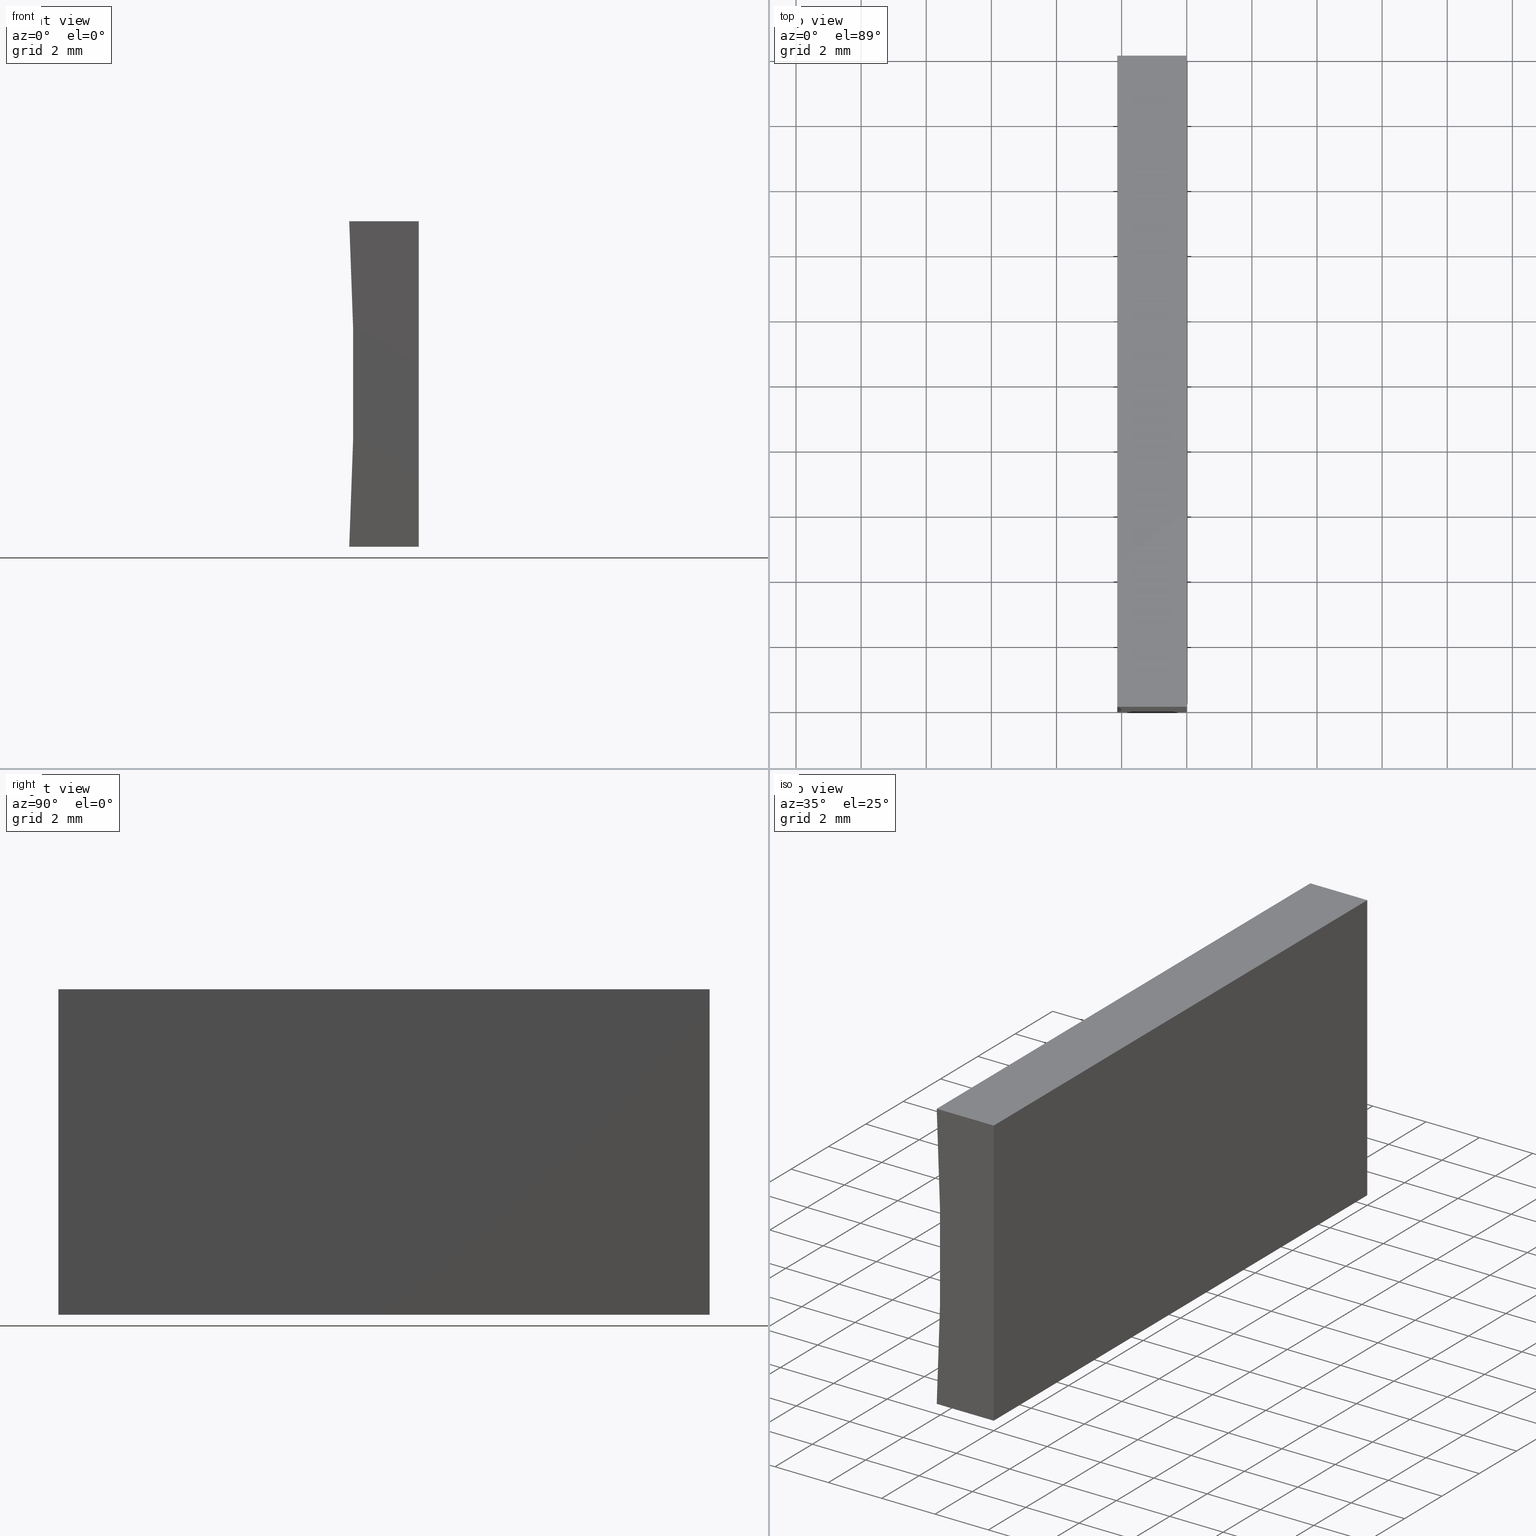
[diagram: canonical four-view strip — front | top / right | iso, engineering-drawing reading convention]
A machine part, canonical four-view strip (front | top / right | iso — engineering-drawing reading convention). The complete STEP part file that produces these views, byte-faithful:
ISO-10303-21;
HEADER;
FILE_DESCRIPTION (( 'STEP AP214' ),
    '1' );
FILE_NAME ('155483.STEP',
    '2019-07-04T01:50:56',
    ( 'user' ),
    ( '΢���й�' ),
    'SwSTEP 2.0',
    'SolidWorks 2016',
    '' );
FILE_SCHEMA (( 'AUTOMOTIVE_DESIGN' ));
ENDSEC;

DATA;
#1 = FILL_AREA_STYLE ('',( #114 ) ) ;
#2 = DIRECTION ( 'NONE',  ( 0.0000000000000000000, 0.0000000000000000000, -1.000000000000000000 ) ) ;
#3 = DIRECTION ( 'NONE',  ( 1.000000000000000000, 0.0000000000000000000, -8.119784972569431900E-016 ) ) ;
#4 = DIRECTION ( 'NONE',  ( 6.123233995736766000E-017, 0.0000000000000000000, 1.000000000000000000 ) ) ;
#5 = EDGE_CURVE ( 'NONE', #48, #185, #176, .T. ) ;
#6 =( NAMED_UNIT ( * ) PLANE_ANGLE_UNIT ( ) SI_UNIT ( $, .RADIAN. ) );
#7 = SURFACE_STYLE_USAGE ( .BOTH. , #102 ) ;
#8 = PRODUCT ( '155483', '155483', '', ( #33 ) ) ;
#9 = EDGE_CURVE ( 'NONE', #77, #148, #94, .T. ) ;
#10 = PRESENTATION_STYLE_ASSIGNMENT (( #7 ) ) ;
#11 = CARTESIAN_POINT ( 'NONE',  ( 6.123233995736766300E-016, 20.00000000000000000, 10.00000000000000000 ) ) ;
#12 = VECTOR ( 'NONE', #103, 1000.000000000000000 ) ;
#13 = AXIS2_PLACEMENT_3D ( 'NONE', #190, #21, #71 ) ;
#14 = SURFACE_STYLE_FILL_AREA ( #1 ) ;
#15 = APPLICATION_PROTOCOL_DEFINITION ( 'draft international standard', 'automotive_design', 1998, #129 ) ;
#16 = LINE ( 'NONE', #195, #12 ) ;
#17 = APPLICATION_CONTEXT ( 'automotive_design' ) ;
#18 = EDGE_CURVE ( 'NONE', #28, #42, #16, .T. ) ;
#19 = DIRECTION ( 'NONE',  ( 0.0000000000000000000, 0.0000000000000000000, 1.000000000000000000 ) ) ;
#20 = DIRECTION ( 'NONE',  ( -0.0000000000000000000, -1.000000000000000000, -0.0000000000000000000 ) ) ;
#21 = DIRECTION ( 'NONE',  ( 0.0000000000000000000, 1.000000000000000000, 0.0000000000000000000 ) ) ;
#22 = CLOSED_SHELL ( 'NONE', ( #182, #201, #64, #125, #139, #46 ) ) ;
#23 = DIRECTION ( 'NONE',  ( -6.123233995736766000E-017, -0.0000000000000000000, -1.000000000000000000 ) ) ;
#24 = ORIENTED_EDGE ( 'NONE', *, *, #9, .F. ) ;
#25 = AXIS2_PLACEMENT_3D ( 'NONE', #130, #20, #19 ) ;
#26 = FACE_OUTER_BOUND ( 'NONE', #165, .T. ) ;
#27 = DIRECTION ( 'NONE',  ( -1.000000000000000000, 0.0000000000000000000, 8.119784972569430900E-016 ) ) ;
#28 = VERTEX_POINT ( 'NONE', #149 ) ;
#29 = EDGE_CURVE ( 'NONE', #28, #48, #134, .T. ) ;
#30 = CARTESIAN_POINT ( 'NONE',  ( -93.70000000000000300, 0.0000000000000000000, 5.000000000000010700 ) ) ;
#31 = VECTOR ( 'NONE', #74, 1000.000000000000000 ) ;
#32 = EDGE_LOOP ( 'NONE', ( #104, #90, #199, #24 ) ) ;
#33 = PRODUCT_CONTEXT ( 'NONE', #17, 'mechanical' ) ;
#34 = APPLICATION_PROTOCOL_DEFINITION ( 'draft international standard', 'automotive_design', 1998, #17 ) ;
#35 = UNCERTAINTY_MEASURE_WITH_UNIT (LENGTH_MEASURE( 1.000000000000000100E-005 ), #83, 'distance_accuracy_value', 'NONE');
#36 = VECTOR ( 'NONE', #63, 1000.000000000000000 ) ;
#37 = PLANE ( 'NONE',  #39 ) ;
#38 = MANIFOLD_SOLID_BREP ( '͹̨-����1', #22 ) ;
#39 = AXIS2_PLACEMENT_3D ( 'NONE', #160, #117, #3 ) ;
#40 = CARTESIAN_POINT ( 'NONE',  ( 0.0000000000000000000, 20.00000000000000000, 0.0000000000000000000 ) ) ;
#41 = FILL_AREA_STYLE ('',( #133 ) ) ;
#42 = VERTEX_POINT ( 'NONE', #55 ) ;
#43 = CARTESIAN_POINT ( 'NONE',  ( 0.0000000000000000000, 20.00000000000000000, 0.0000000000000000000 ) ) ;
#44 = EDGE_CURVE ( 'NONE', #42, #155, #81, .T. ) ;
#45 = ORIENTED_EDGE ( 'NONE', *, *, #78, .F. ) ;
#46 = ADVANCED_FACE ( 'NONE', ( #51 ), #124, .F. ) ;
#47 =( GEOMETRIC_REPRESENTATION_CONTEXT ( 3 ) GLOBAL_UNCERTAINTY_ASSIGNED_CONTEXT ( ( #203 ) ) GLOBAL_UNIT_ASSIGNED_CONTEXT ( ( #69, #159, #50 ) ) REPRESENTATION_CONTEXT ( 'NONE', 'WORKASPACE' ) );
#48 = VERTEX_POINT ( 'NONE', #181 ) ;
#49 = DIRECTION ( 'NONE',  ( 0.0000000000000000000, 0.0000000000000000000, 1.000000000000000000 ) ) ;
#50 =( NAMED_UNIT ( * ) SI_UNIT ( $, .STERADIAN. ) SOLID_ANGLE_UNIT ( ) );
#51 = FACE_OUTER_BOUND ( 'NONE', #32, .T. ) ;
#52 = EDGE_CURVE ( 'NONE', #108, #148, #122, .T. ) ;
#53 = DIRECTION ( 'NONE',  ( -0.0000000000000000000, -1.000000000000000000, -0.0000000000000000000 ) ) ;
#54 = CARTESIAN_POINT ( 'NONE',  ( 6.123233995736766300E-016, 0.0000000000000000000, 10.00000000000000000 ) ) ;
#55 = CARTESIAN_POINT ( 'NONE',  ( 6.123233995736766300E-016, 0.0000000000000000000, 10.00000000000000000 ) ) ;
#56 = DIRECTION ( 'NONE',  ( -1.000000000000000000, 0.0000000000000000000, 8.119784972569430900E-016 ) ) ;
#57 = COLOUR_RGB ( '',1.000000000000000000, 1.000000000000000000, 1.000000000000000000 ) ;
#58 = STYLED_ITEM ( 'NONE', ( #86 ), #164 ) ;
#59 = FACE_OUTER_BOUND ( 'NONE', #141, .T. ) ;
#60 = ORIENTED_EDGE ( 'NONE', *, *, #29, .F. ) ;
#61 = ORIENTED_EDGE ( 'NONE', *, *, #9, .T. ) ;
#62 = EDGE_CURVE ( 'NONE', #155, #77, #96, .T. ) ;
#63 = DIRECTION ( 'NONE',  ( -6.123233995736766000E-017, -0.0000000000000000000, -1.000000000000000000 ) ) ;
#64 = ADVANCED_FACE ( 'NONE', ( #79 ), #194, .F. ) ;
#65 = LINE ( 'NONE', #169, #107 ) ;
#66 = PRODUCT_DEFINITION_SHAPE ( 'NONE', 'NONE',  #153 ) ;
#67 = ORIENTED_EDGE ( 'NONE', *, *, #184, .F. ) ;
#68 =( NAMED_UNIT ( * ) SI_UNIT ( $, .STERADIAN. ) SOLID_ANGLE_UNIT ( ) );
#69 =( LENGTH_UNIT ( ) NAMED_UNIT ( * ) SI_UNIT ( .MILLI., .METRE. ) );
#70 = DIRECTION ( 'NONE',  ( 1.000000000000000000, -0.0000000000000000000, 8.119784972569433800E-016 ) ) ;
#71 = DIRECTION ( 'NONE',  ( 0.0000000000000000000, -0.0000000000000000000, 1.000000000000000000 ) ) ;
#72 = EDGE_LOOP ( 'NONE', ( #136, #45, #128, #80 ) ) ;
#73 = AXIS2_PLACEMENT_3D ( 'NONE', #98, #115, #2 ) ;
#74 = DIRECTION ( 'NONE',  ( 1.000000000000000000, -0.0000000000000000000, 8.119784972569433800E-016 ) ) ;
#75 = DIRECTION ( 'NONE',  ( -1.000000000000000000, 0.0000000000000000000, -8.119784972569434800E-016 ) ) ;
#76 = DIRECTION ( 'NONE',  ( 0.0000000000000000000, 0.0000000000000000000, 1.000000000000000000 ) ) ;
#77 = VERTEX_POINT ( 'NONE', #137 ) ;
#78 = EDGE_CURVE ( 'NONE', #185, #77, #157, .T. ) ;
#79 = FACE_OUTER_BOUND ( 'NONE', #144, .T. ) ;
#80 = ORIENTED_EDGE ( 'NONE', *, *, #200, .T. ) ;
#81 = LINE ( 'NONE', #193, #36 ) ;
#82 = ORIENTED_EDGE ( 'NONE', *, *, #18, .F. ) ;
#83 =( LENGTH_UNIT ( ) NAMED_UNIT ( * ) SI_UNIT ( .MILLI., .METRE. ) );
#84 = AXIS2_PLACEMENT_3D ( 'NONE', #88, #174, #76 ) ;
#85 =( LENGTH_UNIT ( ) NAMED_UNIT ( * ) SI_UNIT ( .MILLI., .METRE. ) );
#86 = PRESENTATION_STYLE_ASSIGNMENT (( #186 ) ) ;
#87 = ORIENTED_EDGE ( 'NONE', *, *, #184, .T. ) ;
#88 = CARTESIAN_POINT ( 'NONE',  ( -93.70000000000000300, 0.0000000000000000000, 5.000000000000010700 ) ) ;
#89 = PRESENTATION_LAYER_ASSIGNMENT (  '', '', ( #58 ) ) ;
#90 = ORIENTED_EDGE ( 'NONE', *, *, #44, .F. ) ;
#91 = VECTOR ( 'NONE', #23, 1000.000000000000000 ) ;
#92 = STYLED_ITEM ( 'NONE', ( #10 ), #38 ) ;
#93 = EDGE_CURVE ( 'NONE', #148, #42, #189, .T. ) ;
#94 = CIRCLE ( 'NONE', #84, 91.70000000000001700 ) ;
#95 = SURFACE_SIDE_STYLE ('',( #14 ) ) ;
#96 = LINE ( 'NONE', #179, #197 ) ;
#97 = CARTESIAN_POINT ( 'NONE',  ( 0.0000000000000000000, 0.0000000000000000000, 0.0000000000000000000 ) ) ;
#98 = CARTESIAN_POINT ( 'NONE',  ( -93.70000000000000300, 20.00000000000000000, 5.000000000000010700 ) ) ;
#99 = MECHANICAL_DESIGN_GEOMETRIC_PRESENTATION_REPRESENTATION (  '', ( #58 ), #112 ) ;
#100 = SHAPE_DEFINITION_REPRESENTATION ( #66, #164 ) ;
#101 = CARTESIAN_POINT ( 'NONE',  ( -2.136415535432423200, 20.00000000000000000, -7.806255641895631900E-015 ) ) ;
#102 = SURFACE_SIDE_STYLE ('',( #168 ) ) ;
#103 = DIRECTION ( 'NONE',  ( -0.0000000000000000000, -1.000000000000000000, -0.0000000000000000000 ) ) ;
#104 = ORIENTED_EDGE ( 'NONE', *, *, #62, .F. ) ;
#105 = PRESENTATION_LAYER_ASSIGNMENT (  '', '', ( #92 ) ) ;
#106 = DIRECTION ( 'NONE',  ( 0.0000000000000000000, 1.000000000000000000, 0.0000000000000000000 ) ) ;
#107 = VECTOR ( 'NONE', #70, 1000.000000000000000 ) ;
#108 = VERTEX_POINT ( 'NONE', #147 ) ;
#109 = PRODUCT_DEFINITION_CONTEXT ( 'detailed design', #129, 'design' ) ;
#110 = VECTOR ( 'NONE', #163, 1000.000000000000000 ) ;
#111 = ORIENTED_EDGE ( 'NONE', *, *, #5, .T. ) ;
#112 =( GEOMETRIC_REPRESENTATION_CONTEXT ( 3 ) GLOBAL_UNCERTAINTY_ASSIGNED_CONTEXT ( ( #35 ) ) GLOBAL_UNIT_ASSIGNED_CONTEXT ( ( #83, #167, #68 ) ) REPRESENTATION_CONTEXT ( 'NONE', 'WORKASPACE' ) );
#113 = ORIENTED_EDGE ( 'NONE', *, *, #187, .T. ) ;
#114 = FILL_AREA_STYLE_COLOUR ( '', #127 ) ;
#115 = DIRECTION ( 'NONE',  ( -0.0000000000000000000, -1.000000000000000000, -0.0000000000000000000 ) ) ;
#116 = MECHANICAL_DESIGN_GEOMETRIC_PRESENTATION_REPRESENTATION (  '', ( #92 ), #126 ) ;
#117 = DIRECTION ( 'NONE',  ( 8.119784972569431900E-016, -0.0000000000000000000, 1.000000000000000000 ) ) ;
#118 = VECTOR ( 'NONE', #135, 1000.000000000000000 ) ;
#119 = DIRECTION ( 'NONE',  ( -1.000000000000000000, 0.0000000000000000000, 6.123233995736766000E-017 ) ) ;
#120 =( NAMED_UNIT ( * ) SI_UNIT ( $, .STERADIAN. ) SOLID_ANGLE_UNIT ( ) );
#121 = ORIENTED_EDGE ( 'NONE', *, *, #29, .T. ) ;
#122 = LINE ( 'NONE', #202, #118 ) ;
#123 = ORIENTED_EDGE ( 'NONE', *, *, #52, .T. ) ;
#124 = PLANE ( 'NONE',  #156 ) ;
#125 = ADVANCED_FACE ( 'NONE', ( #26 ), #132, .F. ) ;
#126 =( GEOMETRIC_REPRESENTATION_CONTEXT ( 3 ) GLOBAL_UNCERTAINTY_ASSIGNED_CONTEXT ( ( #152 ) ) GLOBAL_UNIT_ASSIGNED_CONTEXT ( ( #85, #6, #120 ) ) REPRESENTATION_CONTEXT ( 'NONE', 'WORKASPACE' ) );
#127 = COLOUR_RGB ( '',1.000000000000000000, 1.000000000000000000, 1.000000000000000000 ) ;
#128 = ORIENTED_EDGE ( 'NONE', *, *, #5, .F. ) ;
#129 = APPLICATION_CONTEXT ( 'automotive_design' ) ;
#130 = CARTESIAN_POINT ( 'NONE',  ( -93.70000000000000300, 20.00000000000000000, 5.000000000000010700 ) ) ;
#131 = CARTESIAN_POINT ( 'NONE',  ( 0.0000000000000000000, 20.00000000000000000, 0.0000000000000000000 ) ) ;
#132 = PLANE ( 'NONE',  #198 ) ;
#133 = FILL_AREA_STYLE_COLOUR ( '', #57 ) ;
#134 = LINE ( 'NONE', #43, #91 ) ;
#135 = DIRECTION ( 'NONE',  ( -0.0000000000000000000, -1.000000000000000000, -0.0000000000000000000 ) ) ;
#136 = ORIENTED_EDGE ( 'NONE', *, *, #62, .T. ) ;
#137 = CARTESIAN_POINT ( 'NONE',  ( -2.136415535432423200, 0.0000000000000000000, -7.806255641895631900E-015 ) ) ;
#138 = VECTOR ( 'NONE', #56, 1000.000000000000000 ) ;
#139 = ADVANCED_FACE ( 'NONE', ( #151 ), #171, .T. ) ;
#140 = VECTOR ( 'NONE', #53, 1000.000000000000000 ) ;
#141 = EDGE_LOOP ( 'NONE', ( #61, #162, #158, #180 ) ) ;
#142 = AXIS2_PLACEMENT_3D ( 'NONE', #97, #49, #143 ) ;
#143 = DIRECTION ( 'NONE',  ( 1.000000000000000000, 0.0000000000000000000, 0.0000000000000000000 ) ) ;
#144 = EDGE_LOOP ( 'NONE', ( #191, #82, #67, #123 ) ) ;
#145 = CARTESIAN_POINT ( 'NONE',  ( 0.0000000000000000000, 0.0000000000000000000, 0.0000000000000000000 ) ) ;
#146 = FACE_OUTER_BOUND ( 'NONE', #72, .T. ) ;
#147 = CARTESIAN_POINT ( 'NONE',  ( -2.136415535432422800, 20.00000000000000000, 9.999999999999998200 ) ) ;
#148 = VERTEX_POINT ( 'NONE', #192 ) ;
#149 = CARTESIAN_POINT ( 'NONE',  ( 6.123233995736766300E-016, 20.00000000000000000, 10.00000000000000000 ) ) ;
#150 = ORIENTED_EDGE ( 'NONE', *, *, #44, .T. ) ;
#151 = FACE_OUTER_BOUND ( 'NONE', #204, .T. ) ;
#152 = UNCERTAINTY_MEASURE_WITH_UNIT (LENGTH_MEASURE( 1.000000000000000100E-005 ), #85, 'distance_accuracy_value', 'NONE');
#153 = PRODUCT_DEFINITION ( 'δ֪', '', #161, #109 ) ;
#154 = DIRECTION ( 'NONE',  ( 0.0000000000000000000, -0.0000000000000000000, 1.000000000000000000 ) ) ;
#155 = VERTEX_POINT ( 'NONE', #145 ) ;
#156 = AXIS2_PLACEMENT_3D ( 'NONE', #30, #106, #154 ) ;
#157 = LINE ( 'NONE', #101, #110 ) ;
#158 = ORIENTED_EDGE ( 'NONE', *, *, #187, .F. ) ;
#159 =( NAMED_UNIT ( * ) PLANE_ANGLE_UNIT ( ) SI_UNIT ( $, .RADIAN. ) );
#160 = CARTESIAN_POINT ( 'NONE',  ( 0.0000000000000000000, 20.00000000000000000, 0.0000000000000000000 ) ) ;
#161 = PRODUCT_DEFINITION_FORMATION_WITH_SPECIFIED_SOURCE ( '�κ�', '', #8, .NOT_KNOWN. ) ;
#162 = ORIENTED_EDGE ( 'NONE', *, *, #52, .F. ) ;
#163 = DIRECTION ( 'NONE',  ( -0.0000000000000000000, -1.000000000000000000, -0.0000000000000000000 ) ) ;
#164 = ADVANCED_BREP_SHAPE_REPRESENTATION ( '155483', ( #38, #142 ), #47 ) ;
#165 = EDGE_LOOP ( 'NONE', ( #150, #178, #60, #196 ) ) ;
#166 = PRODUCT_RELATED_PRODUCT_CATEGORY ( 'part', '', ( #8 ) ) ;
#167 =( NAMED_UNIT ( * ) PLANE_ANGLE_UNIT ( ) SI_UNIT ( $, .RADIAN. ) );
#168 = SURFACE_STYLE_FILL_AREA ( #41 ) ;
#169 = CARTESIAN_POINT ( 'NONE',  ( 6.123233995736766300E-016, 20.00000000000000000, 10.00000000000000000 ) ) ;
#170 = AXIS2_PLACEMENT_3D ( 'NONE', #11, #173, #75 ) ;
#171 = PLANE ( 'NONE',  #13 ) ;
#172 = CYLINDRICAL_SURFACE ( 'NONE', #73, 91.70000000000001700 ) ;
#173 = DIRECTION ( 'NONE',  ( 8.119784972569434800E-016, 0.0000000000000000000, -1.000000000000000000 ) ) ;
#174 = DIRECTION ( 'NONE',  ( -0.0000000000000000000, -1.000000000000000000, -0.0000000000000000000 ) ) ;
#175 = CARTESIAN_POINT ( 'NONE',  ( 0.0000000000000000000, 20.00000000000000000, 0.0000000000000000000 ) ) ;
#176 = LINE ( 'NONE', #175, #138 ) ;
#177 = CIRCLE ( 'NONE', #25, 91.70000000000001700 ) ;
#178 = ORIENTED_EDGE ( 'NONE', *, *, #200, .F. ) ;
#179 = CARTESIAN_POINT ( 'NONE',  ( 0.0000000000000000000, 0.0000000000000000000, 0.0000000000000000000 ) ) ;
#180 = ORIENTED_EDGE ( 'NONE', *, *, #78, .T. ) ;
#181 = CARTESIAN_POINT ( 'NONE',  ( 0.0000000000000000000, 20.00000000000000000, 0.0000000000000000000 ) ) ;
#182 = ADVANCED_FACE ( 'NONE', ( #146 ), #37, .F. ) ;
#183 = LINE ( 'NONE', #131, #140 ) ;
#184 = EDGE_CURVE ( 'NONE', #108, #28, #65, .T. ) ;
#185 = VERTEX_POINT ( 'NONE', #188 ) ;
#186 = SURFACE_STYLE_USAGE ( .BOTH. , #95 ) ;
#187 = EDGE_CURVE ( 'NONE', #185, #108, #177, .T. ) ;
#188 = CARTESIAN_POINT ( 'NONE',  ( -2.136415535432423200, 20.00000000000000000, -7.806255641895631900E-015 ) ) ;
#189 = LINE ( 'NONE', #54, #31 ) ;
#190 = CARTESIAN_POINT ( 'NONE',  ( -93.70000000000000300, 20.00000000000000000, 5.000000000000010700 ) ) ;
#191 = ORIENTED_EDGE ( 'NONE', *, *, #93, .T. ) ;
#192 = CARTESIAN_POINT ( 'NONE',  ( -2.136415535432422800, 0.0000000000000000000, 9.999999999999998200 ) ) ;
#193 = CARTESIAN_POINT ( 'NONE',  ( 0.0000000000000000000, 0.0000000000000000000, 0.0000000000000000000 ) ) ;
#194 = PLANE ( 'NONE',  #170 ) ;
#195 = CARTESIAN_POINT ( 'NONE',  ( 6.123233995736766300E-016, 20.00000000000000000, 10.00000000000000000 ) ) ;
#196 = ORIENTED_EDGE ( 'NONE', *, *, #18, .T. ) ;
#197 = VECTOR ( 'NONE', #27, 1000.000000000000000 ) ;
#198 = AXIS2_PLACEMENT_3D ( 'NONE', #40, #119, #4 ) ;
#199 = ORIENTED_EDGE ( 'NONE', *, *, #93, .F. ) ;
#200 = EDGE_CURVE ( 'NONE', #48, #155, #183, .T. ) ;
#201 = ADVANCED_FACE ( 'NONE', ( #59 ), #172, .F. ) ;
#202 = CARTESIAN_POINT ( 'NONE',  ( -2.136415535432422800, 20.00000000000000000, 9.999999999999998200 ) ) ;
#203 = UNCERTAINTY_MEASURE_WITH_UNIT (LENGTH_MEASURE( 1.000000000000000100E-005 ), #69, 'distance_accuracy_value', 'NONE');
#204 = EDGE_LOOP ( 'NONE', ( #111, #113, #87, #121 ) ) ;
ENDSEC;
END-ISO-10303-21;
